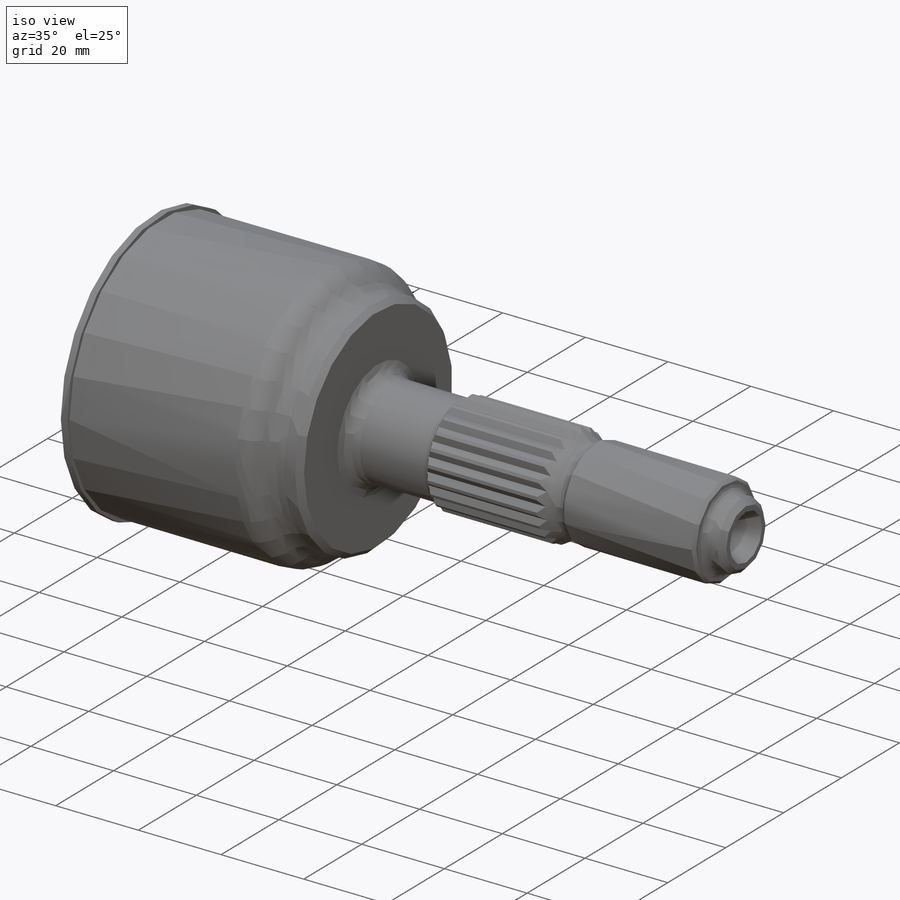
[diagram: iso view]
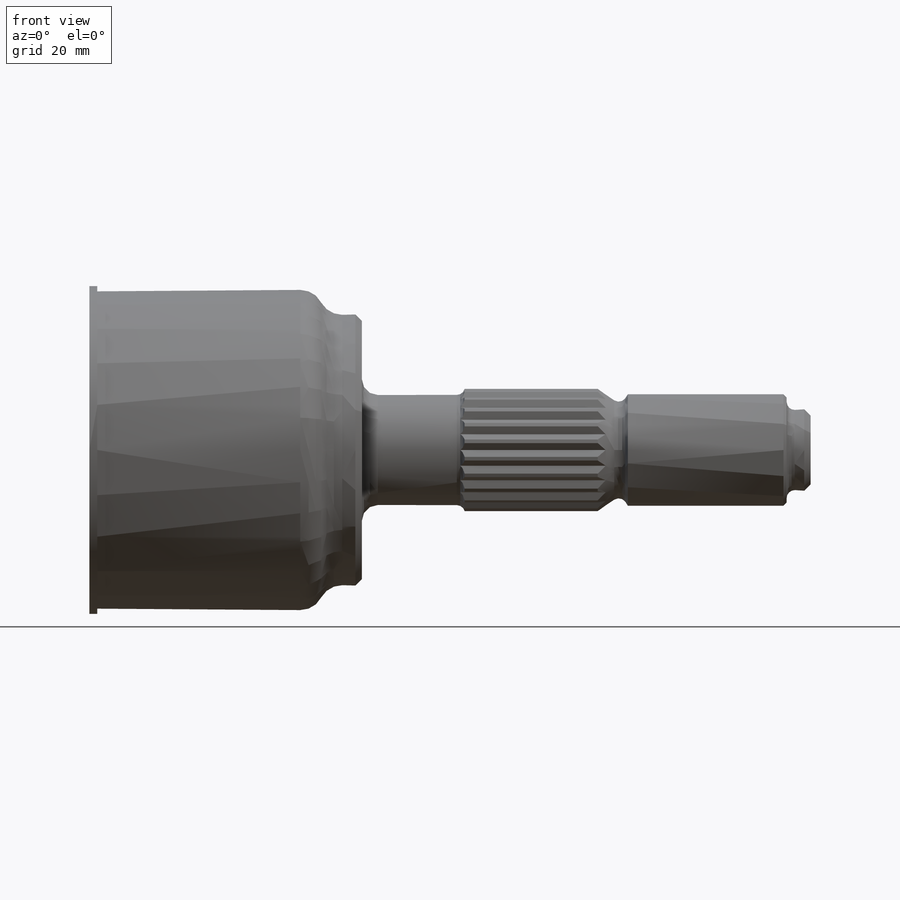
[diagram: front view]
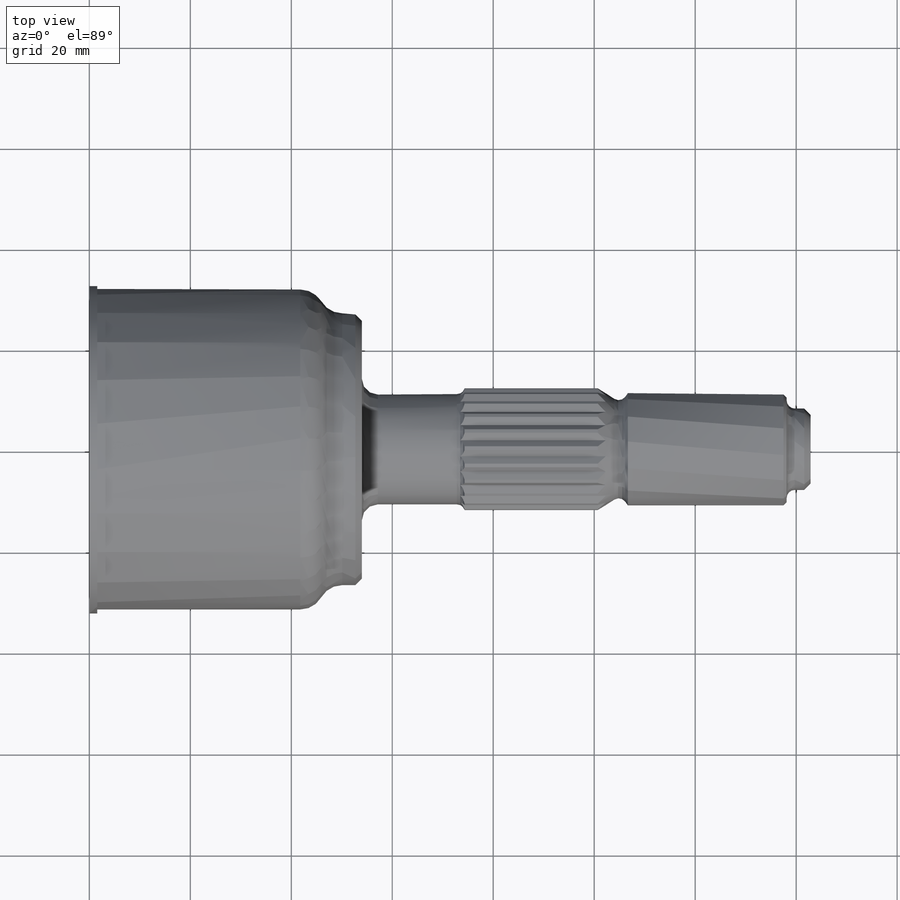
[diagram: top view]
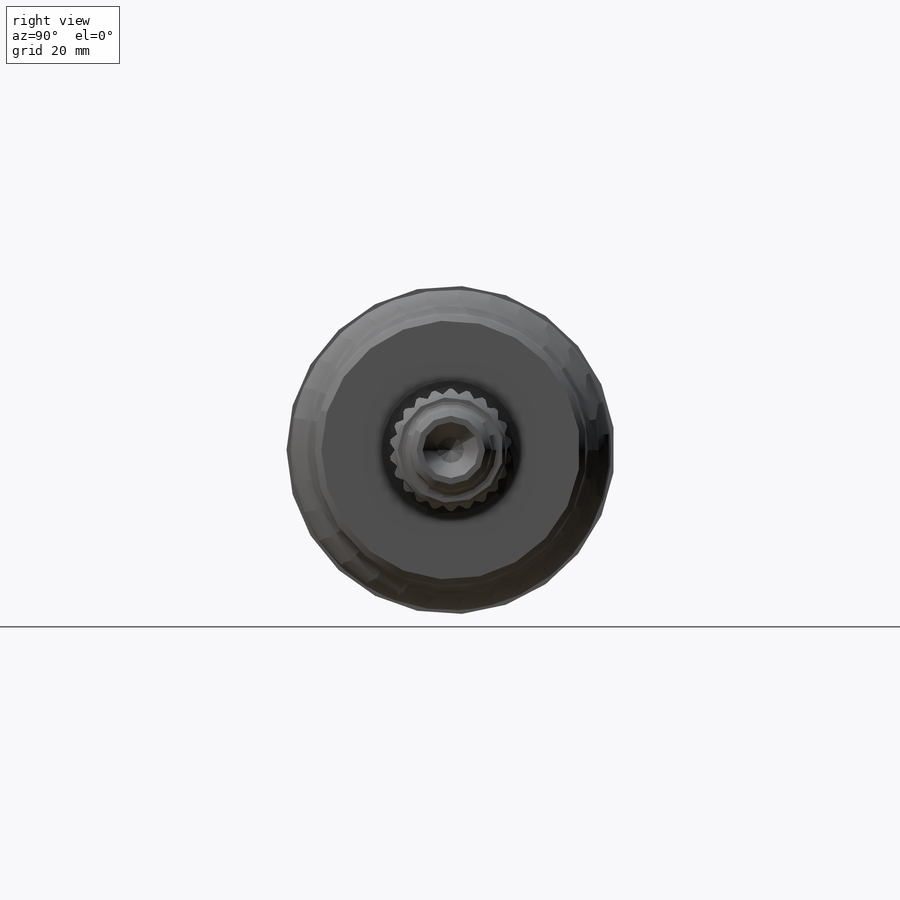
[diagram: right view]
SOLIDWORKS PART (.sldprt)
format: sldprt  version: not decoded by parser v0  size: 684,032 bytes
history: native  units: mm
features: sketch x10, cut_extrude x5, plane x4, cut_revolve x3, material x1, revolve x1, thread x1 (+8 scaffold rows collapsed)
feature tree (33):
  scaffold x8  (default folders/planes/origin — collapsed)
  material  "AISI 4340 Steel, normalized"
  plane  "Front-XY"
  plane  "Top-XZ"
  plane  "Right-YZ"
  sketch  "Sketch1"  dims[c1.D1=~1.20403mm c1.D8=2.2606mm c1.D10=3.175mm c1.D11=1.6002mm c1.D28=1.6002mm c1.D16=1.6002mm c2.D1=31.75mm c2.D2=26.924mm c2.D3=53.975mm c2.D4=1.5748mm c2.D5=32.5374mm c2.D6=1.27mm c2.D7=45.0deg c2.D9=41.783mm c2.D10=46.3042mm c2.D8=50.0888mm c2.D12=72.7964mm c2.D13=10.922mm c2.D14=12.1031mm c2.D15=100.711mm c2.D16=104.8512mm c2.D17=~5.358164mm c3.D17=33.0deg c3.D18=8.0645mm c3.D19=142.875mm c3.D20=138.1252mm c3.D21=11.1125mm c3.D22=5.5626mm c3.D23=1.27mm c3.D24=45.0deg c3.D25=~4.595856mm c4.D25=57.0deg c5.D25=~4.174212mm c6.D25=56.0deg c6.D26=~2.60985mm c6.D27=3.81mm c6.D16=~1.425015mm c6.D29=104.8512mm c6.D30=~0.506665mm]
  revolve  "ProfileRevolve"  [1 undecoded]
  thread  "Cosmetic Thread1"  Diameter=19.304mm  [1 undecoded]
  sketch  "Sketch2"  dims[D1=36.449mm]
  cut_extrude  "CenterPocket"  Depth=43.942mm
  sketch  "Sketch4"  dims[D1=9.525mm D2=24.638mm]
  cut_extrude  "Holes"  Depth=41.275mm
  sketch  "Sketch5"  dims[D1=57.912mm D2=40.64mm D3=25.6921mm D4=3.175mm]
  cut_extrude  "Extrude3"  Depth=43.942mm
  sketch  "Sketch6"  dims[D1=54.864mm D2=23.4188mm D3=18.2245mm D4=54.864mm]
  cut_revolve  "Cut-Revolve1"  Angle=360deg
  plane  "Plane1"  Offset=72.7964mm
  sketch  "Sketch7"  dims[D1=~0.368569mm D2=~3.409837mm]
  cut_extrude  "Extrude4"  [1 undecoded]
  sketch  "Sketch10"  dims[c1.D1=9.779mm c1.D2=22.225mm c2.D2=30.0deg c2.D3=1.3335mm c3.D3=60.0deg c3.D4=~1.539793mm]
  cut_revolve  "Cut-Revolve2"  Angle=360deg
  sketch  "Sketch11"  dims[c1.D1=~44.178598mm c1.D2=~22.411771mm c2.D1=~12.308292mm c2.D2=5.5626mm c2.D3=2.667mm c2.D4=~1.930114mm c3.D4=67.5deg c3.D5=~19.447771mm]
  cut_revolve  "Cut-Revolve3"  Angle=360deg
  sketch  "Sketch13"  dims[D2=76.2mm D3=12.7mm D1=3.556mm]
  cut_extrude  "Extrude6"  [1 undecoded]
  sketch  "3DSketch1"
decode coverage: 16 of 20 modeling features carry decoded parameters
note: ~ marks probable driven/reference dimensions
note: 4 parameter values undecoded
summary: no parameter record found for 3 features
note: suppression state not decoded; provenance and decode notes live in map.json
